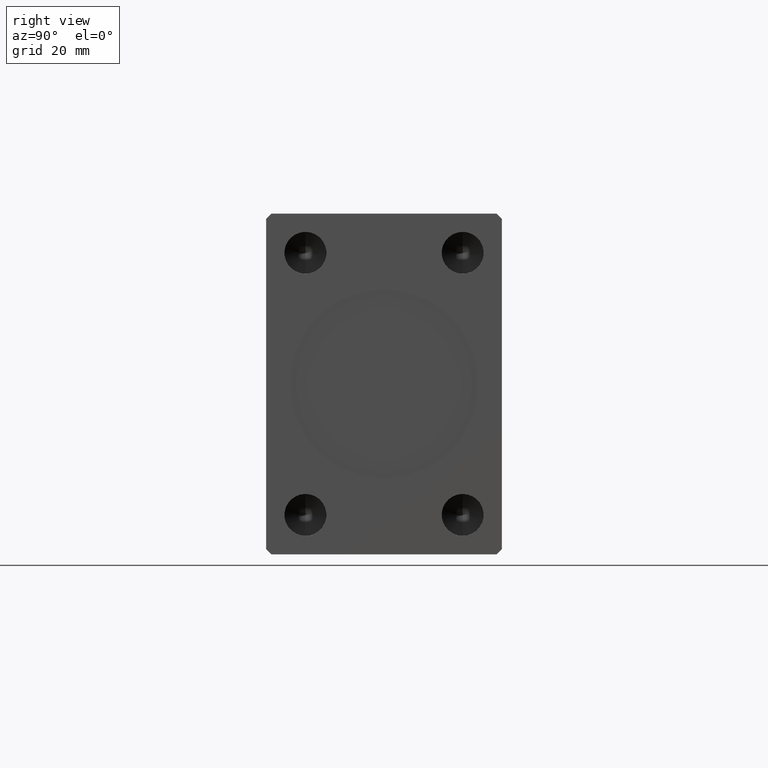
[diagram: clean part render]
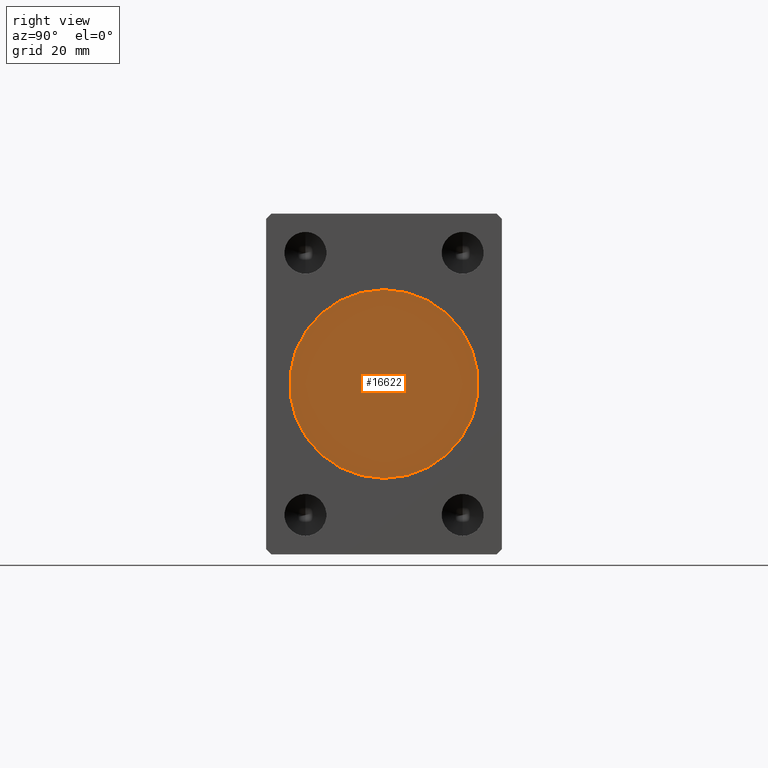
[diagram: same view with one face highlighted and labeled with its STEP entity id]
A machine part, right view. The second image highlights one B-rep face of the part: STEP entity #16622.
In plain terms, the highlighted planar face has unit normal (1, 0, 0).
Its self-contained STEP definition (entity closure, byte-faithful):
#78 = CARTESIAN_POINT ( 'NONE',  ( 107.7999999999999972, 0.000000000000000000, 0.000000000000000000 ) ) ;
#290 = DIRECTION ( 'NONE',  ( 0.000000000000000000, 0.000000000000000000, -1.000000000000000000 ) ) ;
#8172 = ORIENTED_EDGE ( 'NONE', *, *, #22181, .T. ) ;
#14457 = DIRECTION ( 'NONE',  ( 0.000000000000000000, 0.000000000000000000, -1.000000000000000000 ) ) ;
#15552 = CARTESIAN_POINT ( 'NONE',  ( 107.7999999999999972, 0.000000000000000000, 0.000000000000000000 ) ) ;
#16622 = ADVANCED_FACE ( 'NONE', ( #40260 ), #30658, .T. ) ;
#20937 = VERTEX_POINT ( 'NONE', #42947 ) ;
#22181 = EDGE_CURVE ( 'NONE', #20937, #38314, #22633, .T. ) ;
#22633 = CIRCLE ( 'NONE', #29080, 18.00000000000000000 ) ;
#26755 = AXIS2_PLACEMENT_3D ( 'NONE', #78, #27524, #290 ) ;
#27524 = DIRECTION ( 'NONE',  ( 1.000000000000000000, 0.000000000000000000, 0.000000000000000000 ) ) ;
#28730 = CARTESIAN_POINT ( 'NONE',  ( 107.7999999999999972, 0.000000000000000000, -18.00000000000000000 ) ) ;
#29080 = AXIS2_PLACEMENT_3D ( 'NONE', #15552, #29198, #35672 ) ;
#29198 = DIRECTION ( 'NONE',  ( 1.000000000000000000, 0.000000000000000000, 0.000000000000000000 ) ) ;
#30075 = AXIS2_PLACEMENT_3D ( 'NONE', #41905, #35022, #14457 ) ;
#30658 = PLANE ( 'NONE',  #26755 ) ;
#35022 = DIRECTION ( 'NONE',  ( 1.000000000000000000, 0.000000000000000000, 0.000000000000000000 ) ) ;
#35672 = DIRECTION ( 'NONE',  ( 0.000000000000000000, 0.000000000000000000, -1.000000000000000000 ) ) ;
#36570 = EDGE_CURVE ( 'NONE', #38314, #20937, #38629, .T. ) ;
#37336 = EDGE_LOOP ( 'NONE', ( #39281, #8172 ) ) ;
#38314 = VERTEX_POINT ( 'NONE', #28730 ) ;
#38629 = CIRCLE ( 'NONE', #30075, 18.00000000000000000 ) ;
#39281 = ORIENTED_EDGE ( 'NONE', *, *, #36570, .T. ) ;
#40260 = FACE_OUTER_BOUND ( 'NONE', #37336, .T. ) ;
#41905 = CARTESIAN_POINT ( 'NONE',  ( 107.7999999999999972, 0.000000000000000000, 0.000000000000000000 ) ) ;
#42947 = CARTESIAN_POINT ( 'NONE',  ( 107.7999999999999972, 2.204364238465235428E-15, 18.00000000000000000 ) ) ;